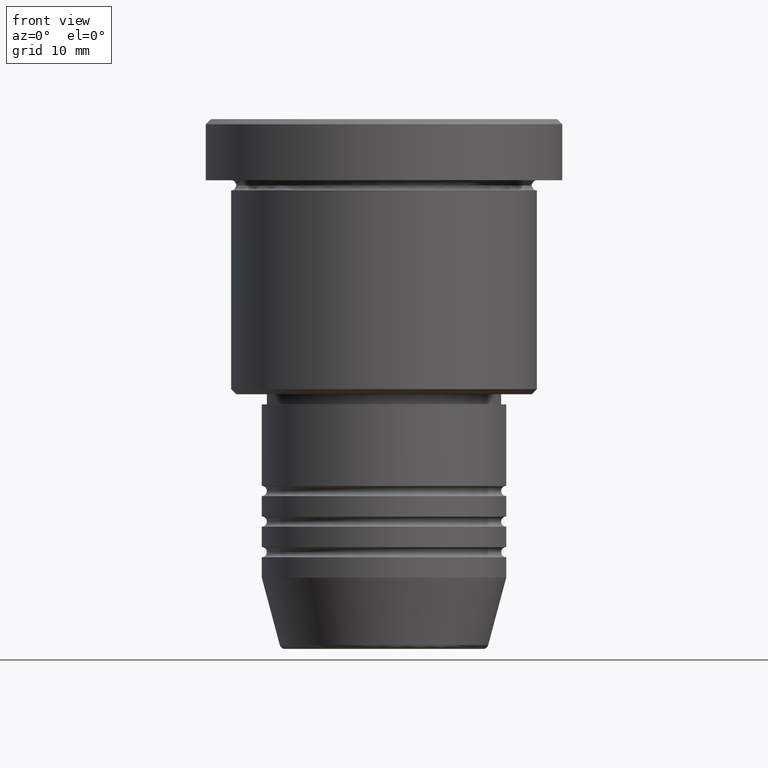
[diagram: clean part render]
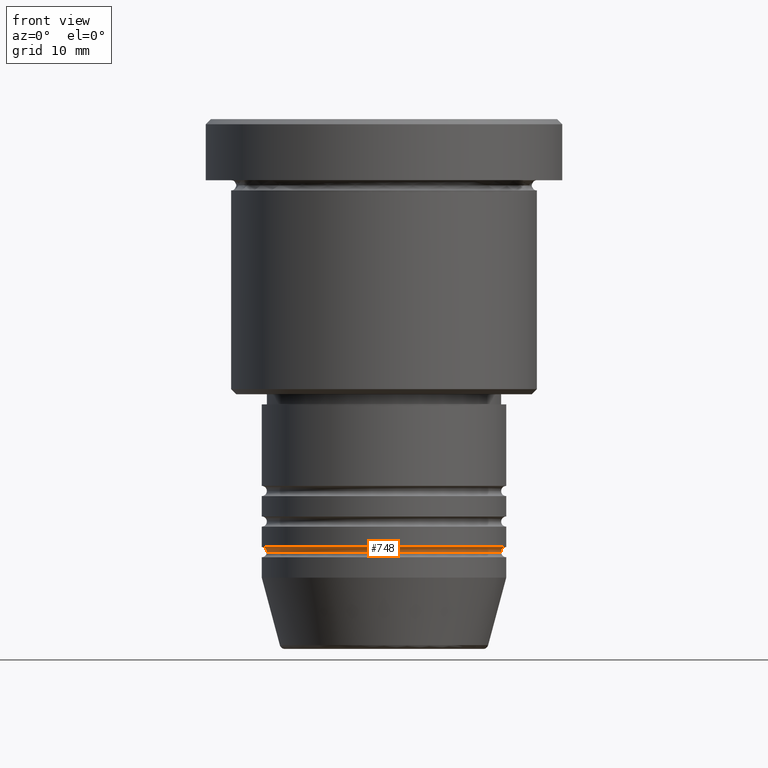
[diagram: same view with one face highlighted and labeled with its STEP entity id]
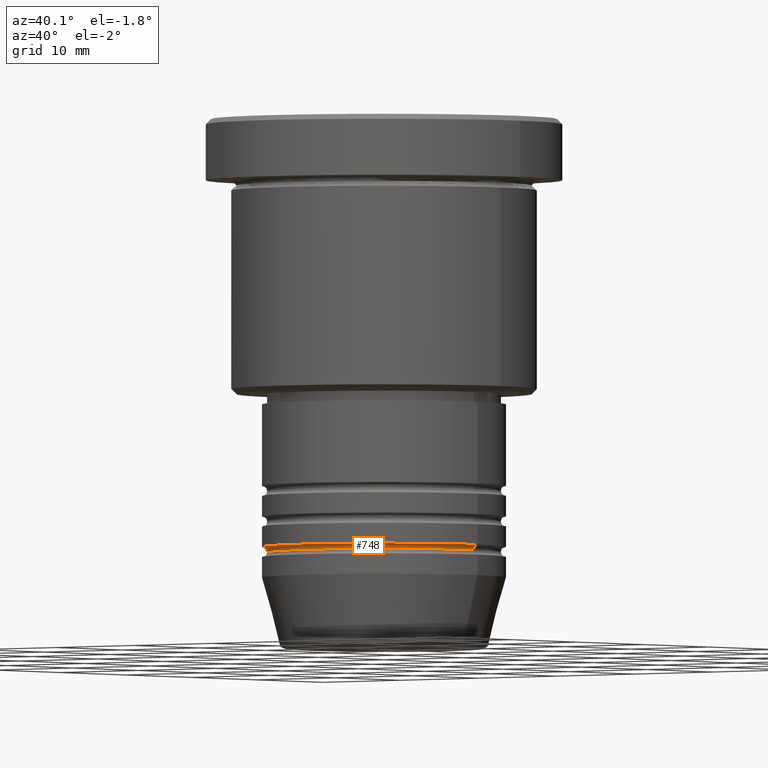
[diagram: same view with one face highlighted and labeled with its STEP entity id]
A machine part, front view. The second image highlights one B-rep face of the part: STEP entity #748.
A second angle (auxiliary view) of the same face is appended — the face is thin or edge-on in the first view.
In plain terms, the highlighted toroidal blend (fillet) surface has major radius 12 mm and minor (blend) radius 0.5 mm.
Its self-contained STEP definition (entity closure, byte-faithful):
#34 = VERTEX_POINT ( 'NONE', #1125 ) ;
#80 = VERTEX_POINT ( 'NONE', #424 ) ;
#90 = DIRECTION ( 'NONE',  ( 0.000000000000000000, 0.000000000000000000, -1.000000000000000000 ) ) ;
#109 = AXIS2_PLACEMENT_3D ( 'NONE', #519, #883, #445 ) ;
#118 = ORIENTED_EDGE ( 'NONE', *, *, #596, .T. ) ;
#146 = DIRECTION ( 'NONE',  ( -1.224646799147353207E-16, 1.000000000000000000, 0.000000000000000000 ) ) ;
#192 = DIRECTION ( 'NONE',  ( -1.000000000000000000, 0.000000000000000000, 0.000000000000000000 ) ) ;
#245 = TOROIDAL_SURFACE ( 'NONE', #910, 12.00000000000000000, 0.5000000000000000000 ) ;
#259 = ORIENTED_EDGE ( 'NONE', *, *, #577, .T. ) ;
#268 = CARTESIAN_POINT ( 'NONE',  ( 0.000000000000000000, 0.000000000000000000, -42.49999999999998579 ) ) ;
#273 = CARTESIAN_POINT ( 'NONE',  ( -12.00000000000000000, 0.000000000000000000, -42.49999999999998579 ) ) ;
#329 = AXIS2_PLACEMENT_3D ( 'NONE', #273, #363, #90 ) ;
#343 = CIRCLE ( 'NONE', #734, 0.5000000000000004441 ) ;
#363 = DIRECTION ( 'NONE',  ( -0.000000000000000000, -1.000000000000000000, -0.000000000000000000 ) ) ;
#420 = CARTESIAN_POINT ( 'NONE',  ( 0.000000000000000000, 0.000000000000000000, -41.99999999999997868 ) ) ;
#424 = CARTESIAN_POINT ( 'NONE',  ( -11.50000000000000000, 1.438959988998139963E-15, -42.49999999999998579 ) ) ;
#430 = ORIENTED_EDGE ( 'NONE', *, *, #1179, .F. ) ;
#445 = DIRECTION ( 'NONE',  ( 1.000000000000000000, 0.000000000000000000, 0.000000000000000000 ) ) ;
#467 = EDGE_CURVE ( 'NONE', #898, #534, #477, .T. ) ;
#474 = EDGE_LOOP ( 'NONE', ( #259, #118, #742, #430 ) ) ;
#477 = CIRCLE ( 'NONE', #834, 12.00000000000000000 ) ;
#519 = CARTESIAN_POINT ( 'NONE',  ( 0.000000000000000000, 0.000000000000000000, -42.49999999999998579 ) ) ;
#534 = VERTEX_POINT ( 'NONE', #602 ) ;
#577 = EDGE_CURVE ( 'NONE', #80, #34, #603, .T. ) ;
#596 = EDGE_CURVE ( 'NONE', #34, #534, #343, .T. ) ;
#602 = CARTESIAN_POINT ( 'NONE',  ( 12.00000000000000000, 0.000000000000000000, -41.99999999999997868 ) ) ;
#603 = CIRCLE ( 'NONE', #109, 11.50000000000000000 ) ;
#644 = FACE_OUTER_BOUND ( 'NONE', #474, .T. ) ;
#734 = AXIS2_PLACEMENT_3D ( 'NONE', #786, #146, #1154 ) ;
#742 = ORIENTED_EDGE ( 'NONE', *, *, #467, .F. ) ;
#748 = ADVANCED_FACE ( 'NONE', ( #644 ), #245, .F. ) ;
#776 = DIRECTION ( 'NONE',  ( -0.000000000000000000, -0.000000000000000000, 1.000000000000000000 ) ) ;
#786 = CARTESIAN_POINT ( 'NONE',  ( 12.00000000000000000, 1.469576158976823947E-15, -42.49999999999998579 ) ) ;
#796 = CIRCLE ( 'NONE', #329, 0.5000000000000004441 ) ;
#834 = AXIS2_PLACEMENT_3D ( 'NONE', #420, #776, #1027 ) ;
#883 = DIRECTION ( 'NONE',  ( -0.000000000000000000, -0.000000000000000000, 1.000000000000000000 ) ) ;
#898 = VERTEX_POINT ( 'NONE', #943 ) ;
#910 = AXIS2_PLACEMENT_3D ( 'NONE', #268, #993, #192 ) ;
#943 = CARTESIAN_POINT ( 'NONE',  ( -12.00000000000000000, 1.469576158976823947E-15, -41.99999999999997868 ) ) ;
#993 = DIRECTION ( 'NONE',  ( 0.000000000000000000, 0.000000000000000000, -1.000000000000000000 ) ) ;
#1027 = DIRECTION ( 'NONE',  ( 1.000000000000000000, 0.000000000000000000, 0.000000000000000000 ) ) ;
#1125 = CARTESIAN_POINT ( 'NONE',  ( 11.50000000000000000, 0.000000000000000000, -42.49999999999998579 ) ) ;
#1154 = DIRECTION ( 'NONE',  ( -1.000000000000000000, -1.224646799147353454E-16, 0.000000000000000000 ) ) ;
#1179 = EDGE_CURVE ( 'NONE', #80, #898, #796, .T. ) ;